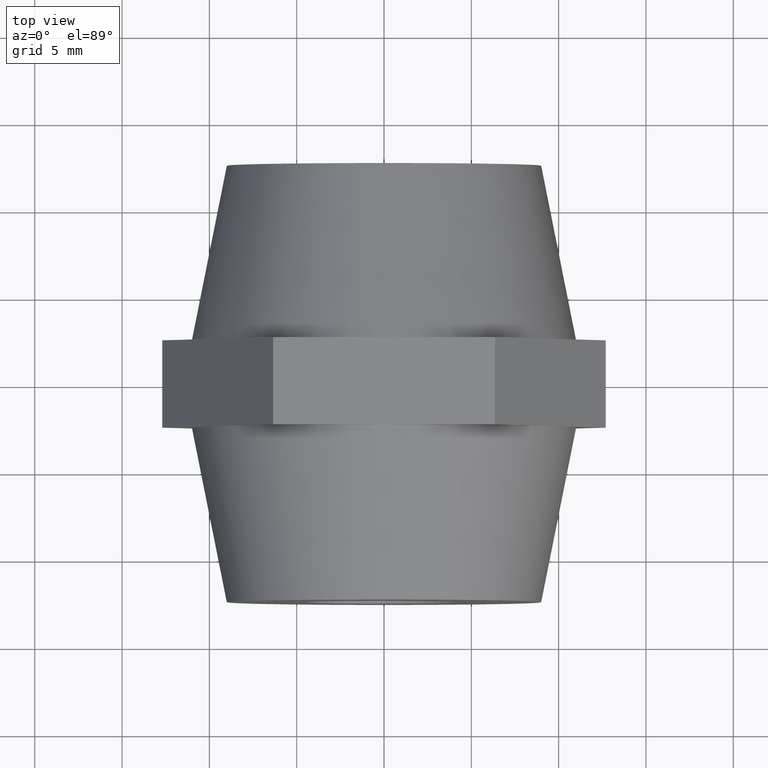
[diagram: clean part render]
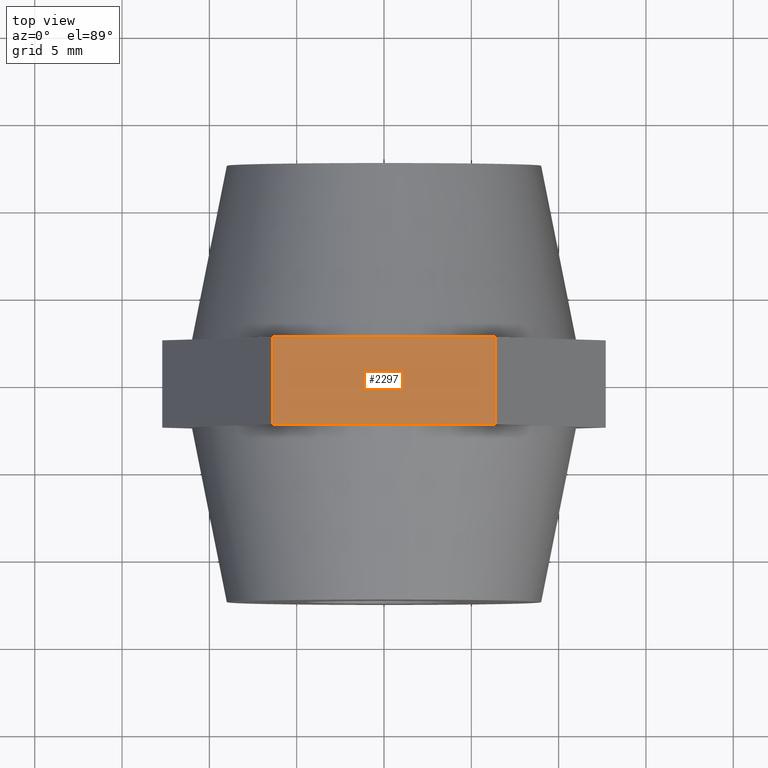
[diagram: same view with one face highlighted and labeled with its STEP entity id]
A machine part, top view. The second image highlights one B-rep face of the part: STEP entity #2297.
In plain terms, the highlighted planar face has unit normal (0, 0, -1).
Its self-contained STEP definition (entity closure, byte-faithful):
#38 = CARTESIAN_POINT ( 'NONE',  ( -6.350852961085890600, 2.500000000000000000, 11.00000000000000000 ) ) ;
#89 = CARTESIAN_POINT ( 'NONE',  ( 1.925929944387235000E-031, 2.500000000000000000, 11.00000000000000000 ) ) ;
#119 = VECTOR ( 'NONE', #2339, 1000.000000000000000 ) ;
#152 = DIRECTION ( 'NONE',  ( 1.000000000000000000, 0.0000000000000000000, 0.0000000000000000000 ) ) ;
#163 = CARTESIAN_POINT ( 'NONE',  ( 6.350852961085890600, 2.500000000000000000, 11.00000000000000000 ) ) ;
#173 = VECTOR ( 'NONE', #1306, 1000.000000000000000 ) ;
#191 = CARTESIAN_POINT ( 'NONE',  ( -6.350852961085890600, 2.500000000000000000, 11.00000000000000000 ) ) ;
#258 = VECTOR ( 'NONE', #152, 1000.000000000000000 ) ;
#301 = VERTEX_POINT ( 'NONE', #675 ) ;
#324 = VERTEX_POINT ( 'NONE', #2431 ) ;
#426 = ORIENTED_EDGE ( 'NONE', *, *, #2777, .F. ) ;
#442 = EDGE_CURVE ( 'NONE', #301, #3341, #1810, .T. ) ;
#454 = CARTESIAN_POINT ( 'NONE',  ( 6.350852961085890600, -2.500000000000000000, 11.00000000000000000 ) ) ;
#530 = CARTESIAN_POINT ( 'NONE',  ( 6.350852961085890600, 2.500000000000000000, 11.00000000000000000 ) ) ;
#573 = VECTOR ( 'NONE', #933, 1000.000000000000000 ) ;
#587 = FACE_OUTER_BOUND ( 'NONE', #2153, .T. ) ;
#675 = CARTESIAN_POINT ( 'NONE',  ( 1.836970198721030000E-015, -2.500000000000000000, 11.00000000000000000 ) ) ;
#797 = DIRECTION ( 'NONE',  ( -1.000000000000000000, 0.0000000000000000000, 0.0000000000000000000 ) ) ;
#933 = DIRECTION ( 'NONE',  ( 1.000000000000000000, 0.0000000000000000000, 0.0000000000000000000 ) ) ;
#1049 = CARTESIAN_POINT ( 'NONE',  ( -6.350852961085890600, -2.500000000000000000, 11.00000000000000000 ) ) ;
#1083 = DIRECTION ( 'NONE',  ( 0.0000000000000000000, 0.0000000000000000000, -1.000000000000000000 ) ) ;
#1222 = EDGE_CURVE ( 'NONE', #1353, #1295, #2908, .T. ) ;
#1295 = VERTEX_POINT ( 'NONE', #89 ) ;
#1306 = DIRECTION ( 'NONE',  ( 1.000000000000000000, 0.0000000000000000000, 0.0000000000000000000 ) ) ;
#1353 = VERTEX_POINT ( 'NONE', #1563 ) ;
#1563 = CARTESIAN_POINT ( 'NONE',  ( -6.350852961085890600, 2.500000000000000000, 11.00000000000000000 ) ) ;
#1622 = EDGE_CURVE ( 'NONE', #1353, #324, #2876, .T. ) ;
#1810 = LINE ( 'NONE', #2502, #258 ) ;
#1823 = LINE ( 'NONE', #191, #173 ) ;
#1829 = ORIENTED_EDGE ( 'NONE', *, *, #1222, .F. ) ;
#1955 = CARTESIAN_POINT ( 'NONE',  ( -6.350852961085890600, 2.500000000000000000, 11.00000000000000000 ) ) ;
#2153 = EDGE_LOOP ( 'NONE', ( #2680, #2737, #426, #2632, #1829, #3732 ) ) ;
#2217 = EDGE_CURVE ( 'NONE', #1295, #3436, #1823, .T. ) ;
#2256 = PLANE ( 'NONE',  #3586 ) ;
#2297 = ADVANCED_FACE ( 'NONE', ( #587 ), #2256, .F. ) ;
#2339 = DIRECTION ( 'NONE',  ( 0.0000000000000000000, -1.000000000000000000, 0.0000000000000000000 ) ) ;
#2431 = CARTESIAN_POINT ( 'NONE',  ( -6.350852961085890600, -2.500000000000000000, 11.00000000000000000 ) ) ;
#2440 = VECTOR ( 'NONE', #3090, 1000.000000000000000 ) ;
#2502 = CARTESIAN_POINT ( 'NONE',  ( -6.350852961085890600, -2.500000000000000000, 11.00000000000000000 ) ) ;
#2581 = DIRECTION ( 'NONE',  ( 0.0000000000000000000, -1.000000000000000000, 0.0000000000000000000 ) ) ;
#2632 = ORIENTED_EDGE ( 'NONE', *, *, #2217, .F. ) ;
#2680 = ORIENTED_EDGE ( 'NONE', *, *, #3377, .T. ) ;
#2737 = ORIENTED_EDGE ( 'NONE', *, *, #442, .T. ) ;
#2777 = EDGE_CURVE ( 'NONE', #3436, #3341, #3335, .T. ) ;
#2876 = LINE ( 'NONE', #3531, #119 ) ;
#2908 = LINE ( 'NONE', #38, #573 ) ;
#3090 = DIRECTION ( 'NONE',  ( 1.000000000000000000, 0.0000000000000000000, 0.0000000000000000000 ) ) ;
#3133 = LINE ( 'NONE', #1049, #2440 ) ;
#3335 = LINE ( 'NONE', #530, #3794 ) ;
#3341 = VERTEX_POINT ( 'NONE', #454 ) ;
#3377 = EDGE_CURVE ( 'NONE', #324, #301, #3133, .T. ) ;
#3436 = VERTEX_POINT ( 'NONE', #163 ) ;
#3531 = CARTESIAN_POINT ( 'NONE',  ( -6.350852961085890600, 2.500000000000000000, 11.00000000000000000 ) ) ;
#3586 = AXIS2_PLACEMENT_3D ( 'NONE', #1955, #1083, #797 ) ;
#3732 = ORIENTED_EDGE ( 'NONE', *, *, #1622, .T. ) ;
#3794 = VECTOR ( 'NONE', #2581, 1000.000000000000000 ) ;